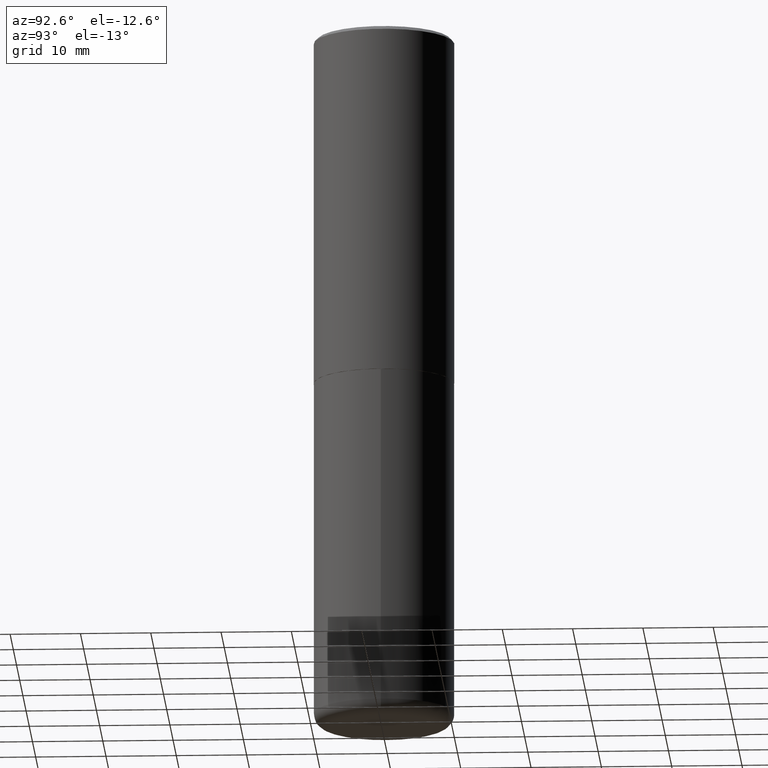
[diagram: clean part render]
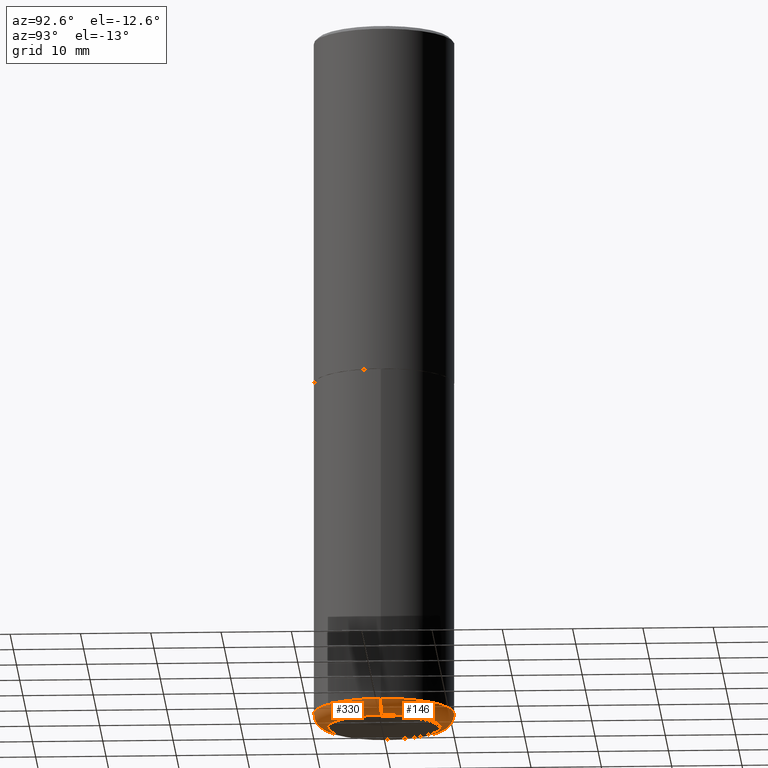
[diagram: same view with one multi-face feature highlighted, each face labeled with its STEP entity id]
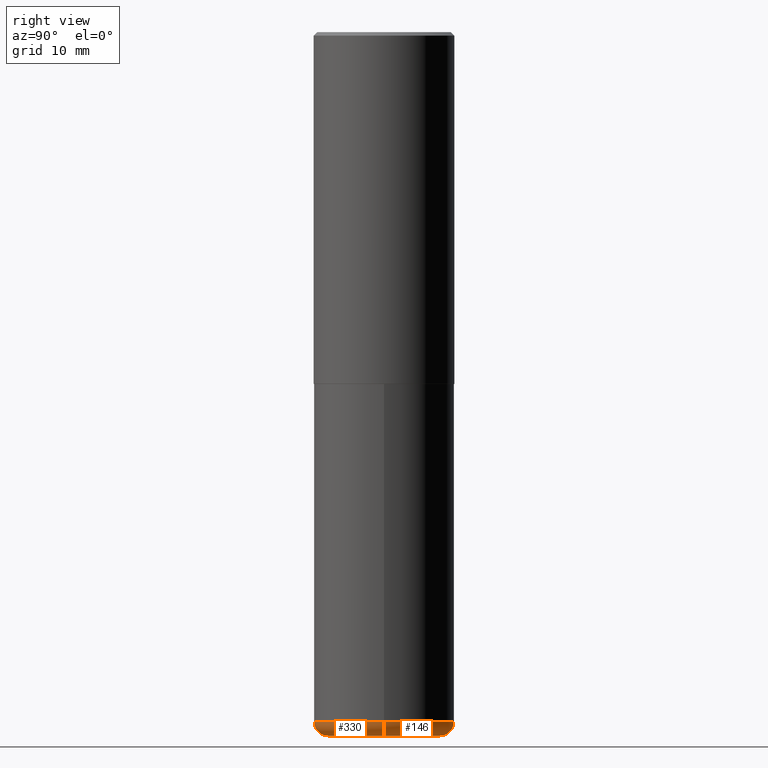
[diagram: same view with one multi-face feature highlighted, each face labeled with its STEP entity id]
A machine part, auxiliary view. The highlighted faces form ONE feature: a constant-radius fillet chain: 2 tangent blend faces with common blend radius 1.999 mm. The faces share edges in the B-rep.
A second angle (right view) of the same feature is appended — it is thin or edge-on in the first view.
Their STEP definitions:
[1] entity #330 (Torus):
#1 = AXIS2_PLACEMENT_3D ( 'NONE', #147, #344, #334 ) ;
#25 = AXIS2_PLACEMENT_3D ( 'NONE', #343, #244, #80 ) ;
#48 = DIRECTION ( 'NONE',  ( -1.000000000000000000, 7.105427357601001859E-15, 0.000000000000000000 ) ) ;
#51 = VERTEX_POINT ( 'NONE', #88 ) ;
#52 = CARTESIAN_POINT ( 'NONE',  ( -0.3150000000000000577, -1.123297283201419171E-14, -3.858300000000000285 ) ) ;
#80 = DIRECTION ( 'NONE',  ( 1.000000000000000000, -6.982962677686267499E-15, 0.000000000000000000 ) ) ;
#86 = CARTESIAN_POINT ( 'NONE',  ( 0.3150000000000000577, -1.594559527449663995E-14, -3.937000000000000721 ) ) ;
#88 = CARTESIAN_POINT ( 'NONE',  ( -0.3937000000000001054, -1.067377569897099292E-14, -3.858300000000000285 ) ) ;
#112 = CARTESIAN_POINT ( 'NONE',  ( 9.435352294904112142E-29, -1.347118244965850850E-14, -3.858300000000000285 ) ) ;
#137 = ORIENTED_EDGE ( 'NONE', *, *, #269, .T. ) ;
#144 = VERTEX_POINT ( 'NONE', #86 ) ;
#147 = CARTESIAN_POINT ( 'NONE',  ( 9.627810689950884790E-29, -1.374596203102546657E-14, -3.937000000000000721 ) ) ;
#149 = CIRCLE ( 'NONE', #382, 0.07870000000000017260 ) ;
#151 = CIRCLE ( 'NONE', #25, 0.3937000000000000499 ) ;
#158 = EDGE_CURVE ( 'NONE', #364, #144, #230, .T. ) ;
#167 = AXIS2_PLACEMENT_3D ( 'NONE', #112, #366, #272 ) ;
#209 = CARTESIAN_POINT ( 'NONE',  ( -0.3150000000000000577, -1.109076405617607056E-14, -3.937000000000000721 ) ) ;
#230 = CIRCLE ( 'NONE', #1, 0.3150000000000000577 ) ;
#231 = ORIENTED_EDGE ( 'NONE', *, *, #376, .F. ) ;
#244 = DIRECTION ( 'NONE',  ( -2.445468806185136597E-29, 3.491481338843145583E-15, 1.000000000000000000 ) ) ;
#255 = ORIENTED_EDGE ( 'NONE', *, *, #325, .F. ) ;
#260 = VERTEX_POINT ( 'NONE', #388 ) ;
#261 = TOROIDAL_SURFACE ( 'NONE', #167, 0.3150000000000000577, 0.07870000000000021423 ) ;
#267 = FACE_OUTER_BOUND ( 'NONE', #396, .T. ) ;
#269 = EDGE_CURVE ( 'NONE', #144, #260, #350, .T. ) ;
#272 = DIRECTION ( 'NONE',  ( 1.000000000000000000, -6.982962677686264344E-15, 4.883557194083112340E-29 ) ) ;
#307 = DIRECTION ( 'NONE',  ( 7.105427357601001859E-15, 1.000000000000000000, -3.491481338843145583E-15 ) ) ;
#319 = DIRECTION ( 'NONE',  ( -6.982962677686266711E-15, -1.000000000000000000, 3.491481338843145583E-15 ) ) ;
#325 = EDGE_CURVE ( 'NONE', #51, #260, #151, .T. ) ;
#329 = AXIS2_PLACEMENT_3D ( 'NONE', #403, #319, #410 ) ;
#330 = ADVANCED_FACE ( 'NONE', ( #267 ), #261, .T. ) ;
#334 = DIRECTION ( 'NONE',  ( 1.000000000000000000, -6.982962677686267499E-15, 0.000000000000000000 ) ) ;
#343 = CARTESIAN_POINT ( 'NONE',  ( 9.435352294904112142E-29, -1.347118244965850850E-14, -3.858300000000000285 ) ) ;
#344 = DIRECTION ( 'NONE',  ( -2.445468806185136597E-29, 3.491481338843145583E-15, 1.000000000000000000 ) ) ;
#350 = CIRCLE ( 'NONE', #329, 0.07870000000000017260 ) ;
#364 = VERTEX_POINT ( 'NONE', #209 ) ;
#366 = DIRECTION ( 'NONE',  ( -2.445468806185136597E-29, 3.491481338843145583E-15, 1.000000000000000000 ) ) ;
#367 = ORIENTED_EDGE ( 'NONE', *, *, #158, .T. ) ;
#376 = EDGE_CURVE ( 'NONE', #364, #51, #149, .T. ) ;
#382 = AXIS2_PLACEMENT_3D ( 'NONE', #52, #307, #48 ) ;
#388 = CARTESIAN_POINT ( 'NONE',  ( 0.3937000000000001054, -1.622037485586359329E-14, -3.858300000000000285 ) ) ;
#396 = EDGE_LOOP ( 'NONE', ( #231, #367, #137, #255 ) ) ;
#403 = CARTESIAN_POINT ( 'NONE',  ( 0.3150000000000000577, -1.567081569312968346E-14, -3.858300000000000285 ) ) ;
#410 = DIRECTION ( 'NONE',  ( 1.000000000000000000, -6.982962677686279332E-15, 0.000000000000000000 ) ) ;
[2] entity #146 (Torus):
#3 = ORIENTED_EDGE ( 'NONE', *, *, #69, .T. ) ;
#7 = ORIENTED_EDGE ( 'NONE', *, *, #269, .F. ) ;
#48 = DIRECTION ( 'NONE',  ( -1.000000000000000000, 7.105427357601001859E-15, 0.000000000000000000 ) ) ;
#51 = VERTEX_POINT ( 'NONE', #88 ) ;
#52 = CARTESIAN_POINT ( 'NONE',  ( -0.3150000000000000577, -1.123297283201419171E-14, -3.858300000000000285 ) ) ;
#60 = DIRECTION ( 'NONE',  ( -2.445468806185136597E-29, 3.491481338843145583E-15, 1.000000000000000000 ) ) ;
#63 = EDGE_CURVE ( 'NONE', #260, #51, #276, .T. ) ;
#69 = EDGE_CURVE ( 'NONE', #144, #364, #275, .T. ) ;
#83 = DIRECTION ( 'NONE',  ( 1.000000000000000000, -6.982962677686267499E-15, 0.000000000000000000 ) ) ;
#86 = CARTESIAN_POINT ( 'NONE',  ( 0.3150000000000000577, -1.594559527449663995E-14, -3.937000000000000721 ) ) ;
#88 = CARTESIAN_POINT ( 'NONE',  ( -0.3937000000000001054, -1.067377569897099292E-14, -3.858300000000000285 ) ) ;
#95 = AXIS2_PLACEMENT_3D ( 'NONE', #208, #60, #282 ) ;
#144 = VERTEX_POINT ( 'NONE', #86 ) ;
#146 = ADVANCED_FACE ( 'NONE', ( #305 ), #368, .T. ) ;
#149 = CIRCLE ( 'NONE', #382, 0.07870000000000017260 ) ;
#187 = AXIS2_PLACEMENT_3D ( 'NONE', #395, #365, #215 ) ;
#208 = CARTESIAN_POINT ( 'NONE',  ( 9.627810689950884790E-29, -1.374596203102546657E-14, -3.937000000000000721 ) ) ;
#209 = CARTESIAN_POINT ( 'NONE',  ( -0.3150000000000000577, -1.109076405617607056E-14, -3.937000000000000721 ) ) ;
#215 = DIRECTION ( 'NONE',  ( 1.000000000000000000, -6.982962677686264344E-15, 4.883557194083112340E-29 ) ) ;
#241 = AXIS2_PLACEMENT_3D ( 'NONE', #250, #378, #83 ) ;
#250 = CARTESIAN_POINT ( 'NONE',  ( 9.435352294904112142E-29, -1.347118244965850850E-14, -3.858300000000000285 ) ) ;
#260 = VERTEX_POINT ( 'NONE', #388 ) ;
#269 = EDGE_CURVE ( 'NONE', #144, #260, #350, .T. ) ;
#275 = CIRCLE ( 'NONE', #95, 0.3150000000000000577 ) ;
#276 = CIRCLE ( 'NONE', #241, 0.3937000000000000499 ) ;
#282 = DIRECTION ( 'NONE',  ( 1.000000000000000000, -6.982962677686267499E-15, 0.000000000000000000 ) ) ;
#294 = EDGE_LOOP ( 'NONE', ( #3, #360, #298, #7 ) ) ;
#298 = ORIENTED_EDGE ( 'NONE', *, *, #63, .F. ) ;
#305 = FACE_OUTER_BOUND ( 'NONE', #294, .T. ) ;
#307 = DIRECTION ( 'NONE',  ( 7.105427357601001859E-15, 1.000000000000000000, -3.491481338843145583E-15 ) ) ;
#319 = DIRECTION ( 'NONE',  ( -6.982962677686266711E-15, -1.000000000000000000, 3.491481338843145583E-15 ) ) ;
#329 = AXIS2_PLACEMENT_3D ( 'NONE', #403, #319, #410 ) ;
#350 = CIRCLE ( 'NONE', #329, 0.07870000000000017260 ) ;
#360 = ORIENTED_EDGE ( 'NONE', *, *, #376, .T. ) ;
#364 = VERTEX_POINT ( 'NONE', #209 ) ;
#365 = DIRECTION ( 'NONE',  ( -2.445468806185136597E-29, 3.491481338843145583E-15, 1.000000000000000000 ) ) ;
#368 = TOROIDAL_SURFACE ( 'NONE', #187, 0.3150000000000000577, 0.07870000000000021423 ) ;
#376 = EDGE_CURVE ( 'NONE', #364, #51, #149, .T. ) ;
#378 = DIRECTION ( 'NONE',  ( -2.445468806185136597E-29, 3.491481338843145583E-15, 1.000000000000000000 ) ) ;
#382 = AXIS2_PLACEMENT_3D ( 'NONE', #52, #307, #48 ) ;
#388 = CARTESIAN_POINT ( 'NONE',  ( 0.3937000000000001054, -1.622037485586359329E-14, -3.858300000000000285 ) ) ;
#395 = CARTESIAN_POINT ( 'NONE',  ( 9.435352294904112142E-29, -1.347118244965850850E-14, -3.858300000000000285 ) ) ;
#403 = CARTESIAN_POINT ( 'NONE',  ( 0.3150000000000000577, -1.567081569312968346E-14, -3.858300000000000285 ) ) ;
#410 = DIRECTION ( 'NONE',  ( 1.000000000000000000, -6.982962677686279332E-15, 0.000000000000000000 ) ) ;